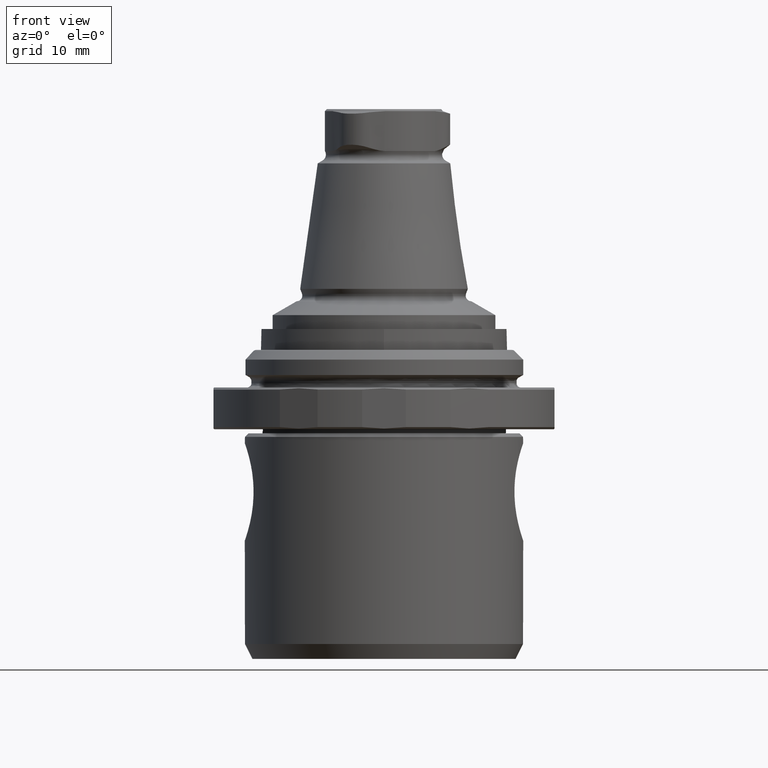
[diagram: clean part render]
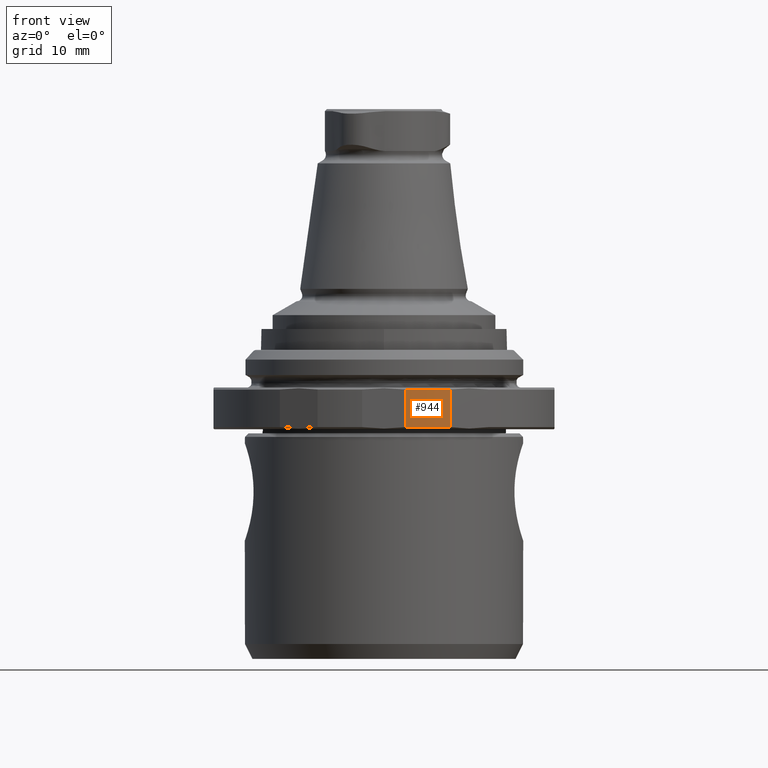
[diagram: same view with one face highlighted and labeled with its STEP entity id]
A machine part, front view. The second image highlights one B-rep face of the part: STEP entity #944.
In plain terms, the highlighted cylindrical surface (partial cylindrical patch) has radius 24.7 mm, axis along (0, 0, -1).
Its self-contained STEP definition (entity closure, byte-faithful):
#27=LINE('',#1590,#55);
#28=LINE('',#1594,#56);
#55=VECTOR('',#1223,1000.);
#56=VECTOR('',#1228,1000.);
#129=CYLINDRICAL_SURFACE('',#1048,24.7);
#234=ORIENTED_EDGE('',*,*,#448,.T.);
#235=ORIENTED_EDGE('',*,*,#468,.T.);
#236=ORIENTED_EDGE('',*,*,#469,.F.);
#237=ORIENTED_EDGE('',*,*,#470,.T.);
#448=EDGE_CURVE('',#577,#576,#663,.T.);
#468=EDGE_CURVE('',#576,#589,#27,.T.);
#469=EDGE_CURVE('',#590,#589,#669,.T.);
#470=EDGE_CURVE('',#590,#577,#28,.F.);
#576=VERTEX_POINT('',#1528);
#577=VERTEX_POINT('',#1530);
#589=VERTEX_POINT('',#1589);
#590=VERTEX_POINT('',#1593);
#663=CIRCLE('',#1035,24.7);
#669=CIRCLE('',#1049,24.7);
#734=EDGE_LOOP('',(#234,#235,#236,#237));
#836=FACE_BOUND('',#734,.T.);
#944=ADVANCED_FACE('',(#836),#129,.T.);
#1035=AXIS2_PLACEMENT_3D('',#1529,#1190,#1191);
#1048=AXIS2_PLACEMENT_3D('',#1591,#1224,#1225);
#1049=AXIS2_PLACEMENT_3D('',#1592,#1226,#1227);
#1190=DIRECTION('',(1.1985897436163E-16,5.68031218956752E-33,-1.));
#1191=DIRECTION('',(1.,-2.71836589696428E-16,1.1985897436163E-16));
#1223=DIRECTION('',(1.1985897436163E-16,5.68031218956752E-33,-1.));
#1224=DIRECTION('',(1.1985897436163E-16,5.68031218956752E-33,-1.));
#1225=DIRECTION('',(1.,-2.71836589696428E-16,1.1985897436163E-16));
#1226=DIRECTION('',(1.1985897436163E-16,5.68031218956752E-33,-1.));
#1227=DIRECTION('',(1.,-2.71836589696428E-16,1.1985897436163E-16));
#1228=DIRECTION('',(1.1985897436163E-16,5.68031218956752E-33,-1.));
#1528=CARTESIAN_POINT('',(3.13687742827159,-24.5,-11.2937822173508));
#1529=CARTESIAN_POINT('',(1.59237315203997E-15,3.0557989933873E-32,-11.2937822173508));
#1530=CARTESIAN_POINT('',(9.53338445855884,-22.7860611068545,-11.2937822173508));
#1589=CARTESIAN_POINT('',(3.13687742827159,-24.5,-16.6937822173509));
#1590=CARTESIAN_POINT('',(3.13687742827159,-24.5,-10.9937822173509));
#1591=CARTESIAN_POINT('',(1.5564154597315E-15,2.88538962770035E-32,-10.9937822173509));
#1592=CARTESIAN_POINT('',(2.23961161359279E-15,6.12316757575384E-32,-16.6937822173509));
#1593=CARTESIAN_POINT('',(9.53338445855884,-22.7860611068545,-16.6937822173509));
#1594=CARTESIAN_POINT('',(9.53338445855884,-22.7860611068545,-10.9937822173509));